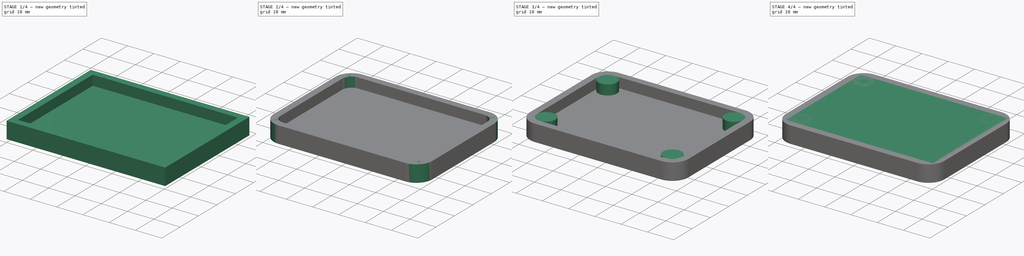
[diagram: build sequence overview — one tinted view per stage of 4, left to right]
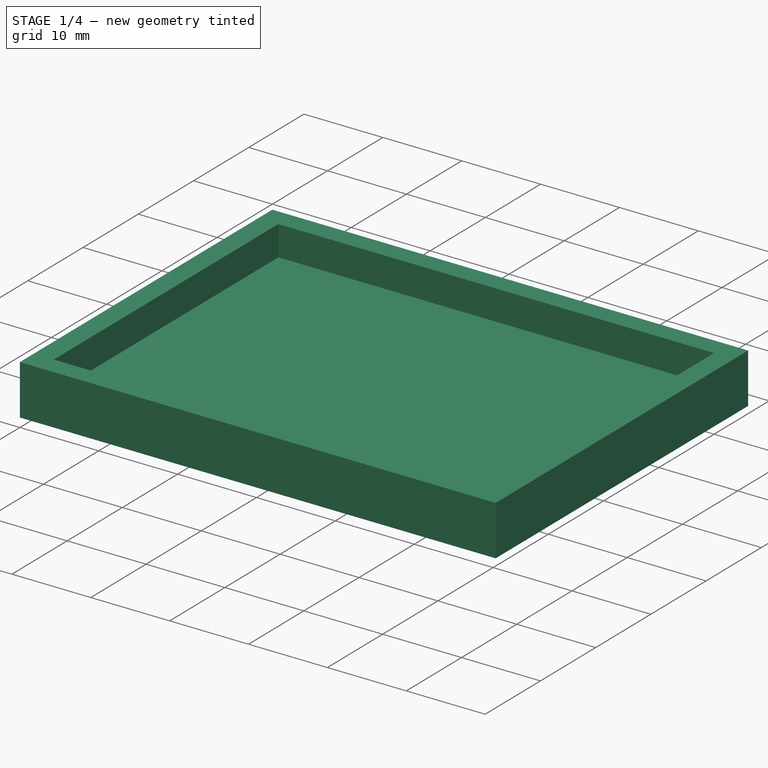
[diagram: stage 1 of 4 — iso view after this stage's code; geometry added in this stage tinted green]
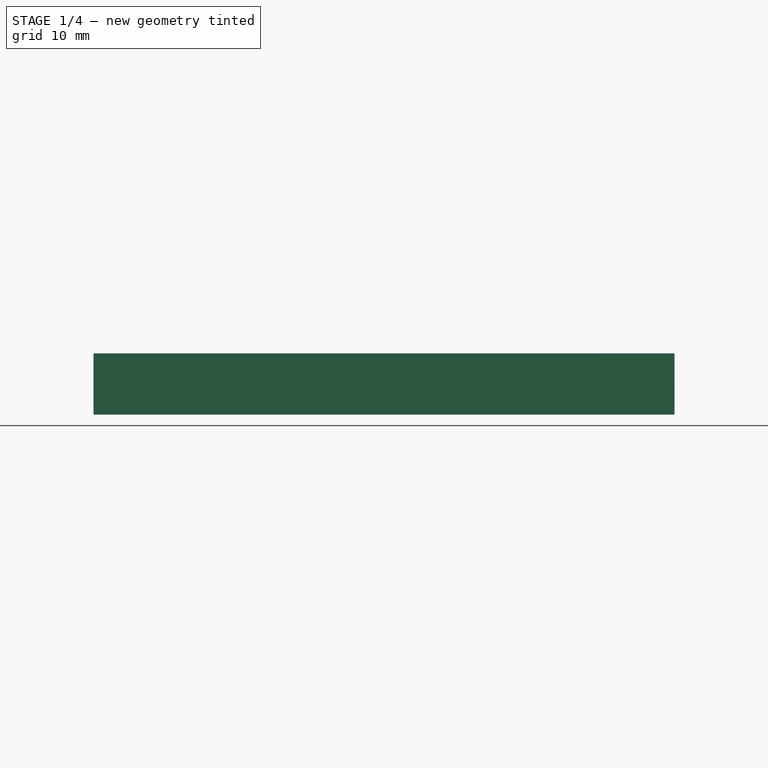
[diagram: stage 1 of 4 — front view after this stage's code; geometry added in this stage tinted green]
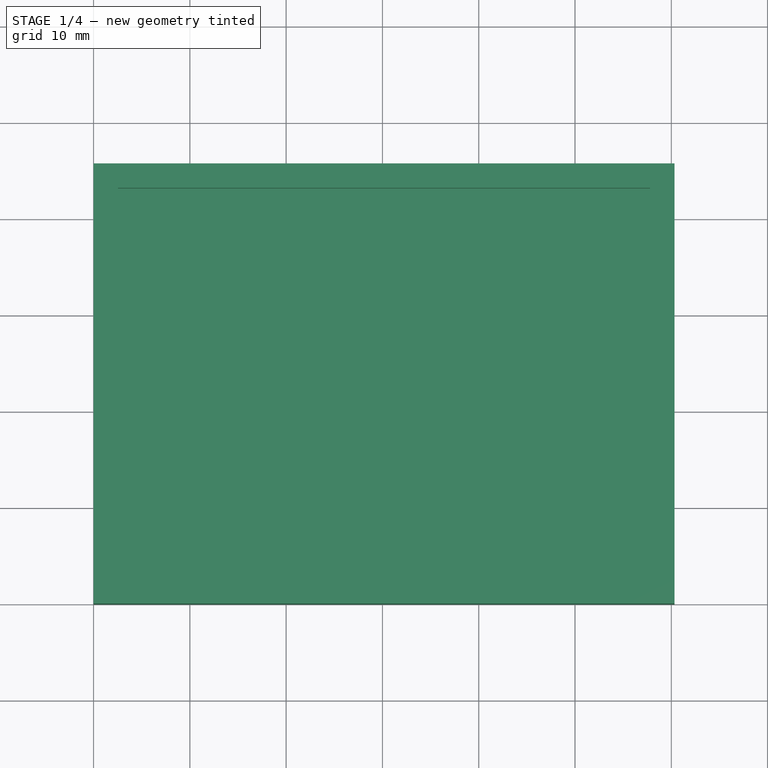
[diagram: stage 1 of 4 — top view after this stage's code; geometry added in this stage tinted green]
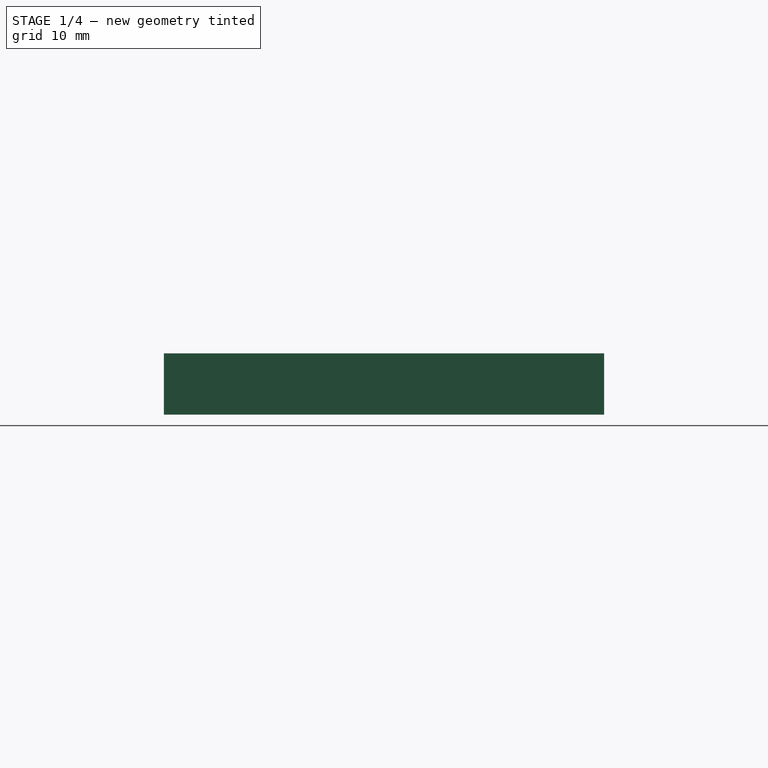
[diagram: stage 1 of 4 — right view after this stage's code; geometry added in this stage tinted green]
FCSTD DOCUMENT  (FreeCAD 0.19R21857 (Git))
Label: blinky_WB_part
License: All rights reserved
LicenseURL: http://en.wikipedia.org/wiki/All_rights_reserved
objects: Part::Feature×15, App::Part×15, Part::Box×2, Part::Fillet×2, Sketcher::SketchObject×2, Part::Extrusion×2, Part::Thickness×1, Part::MultiFuse×1, Part::Cut×1
note: 26 computed .brp shape members not serialized (recipe doc carries the construction recipe); baked Part::Feature solids carry a one-line shape summary decoded from their .brp

FEATURE [Part::Box] Box  label="Cube"
  AttacherType = Attacher::AttachEngine3D
  Height = 6.35
  Length = 60.325
  Width = 45.72
FEATURE [Part::Thickness] Thickness
  Faces = -> Box [Face6]
  Intersection = false
  Join = 2
  Mode = 0
  SelfIntersection = false
  Value = -2.54
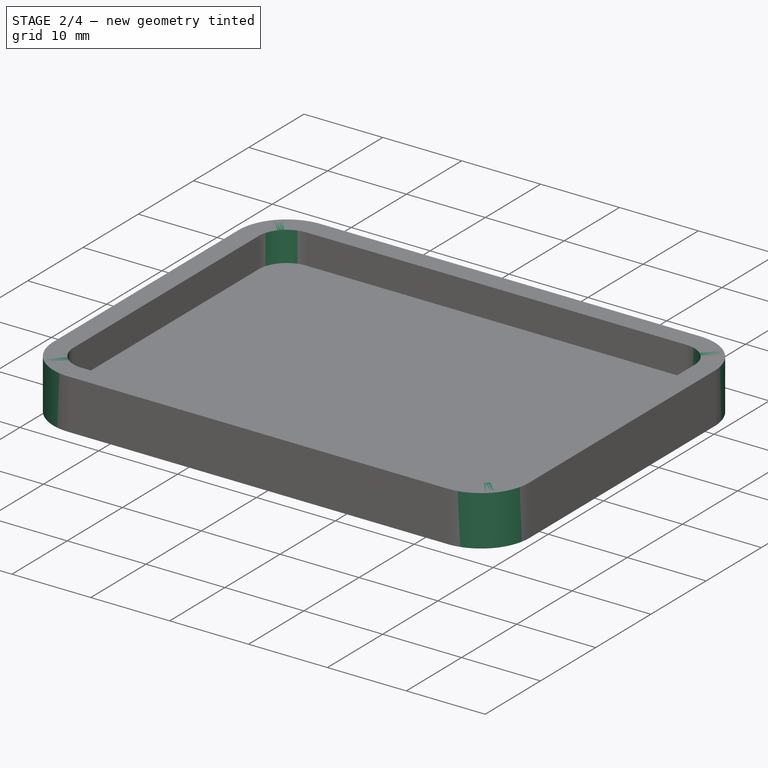
[diagram: stage 2 of 4 — iso view after this stage's code; geometry added in this stage tinted green]
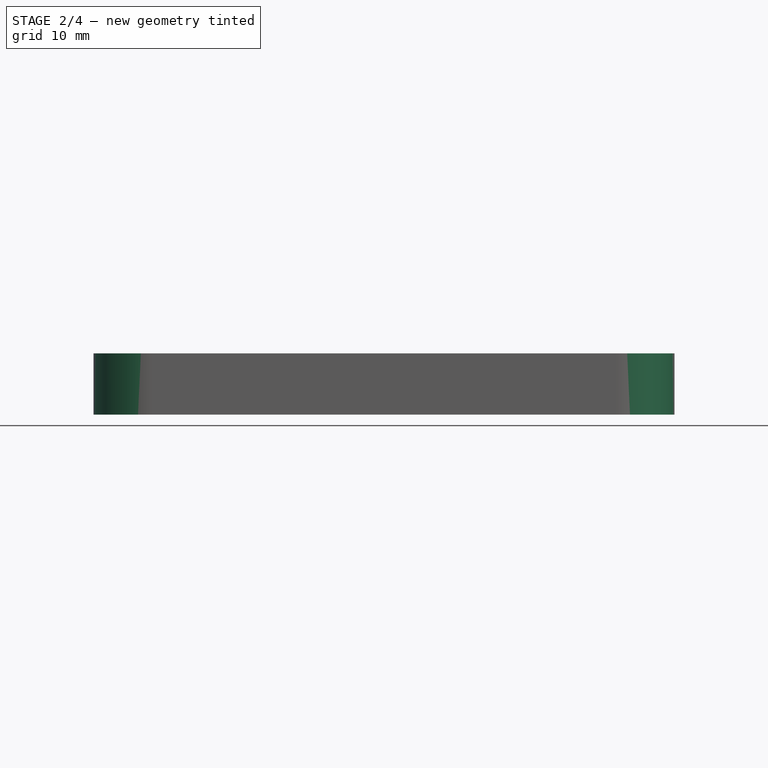
[diagram: stage 2 of 4 — front view after this stage's code; geometry added in this stage tinted green]
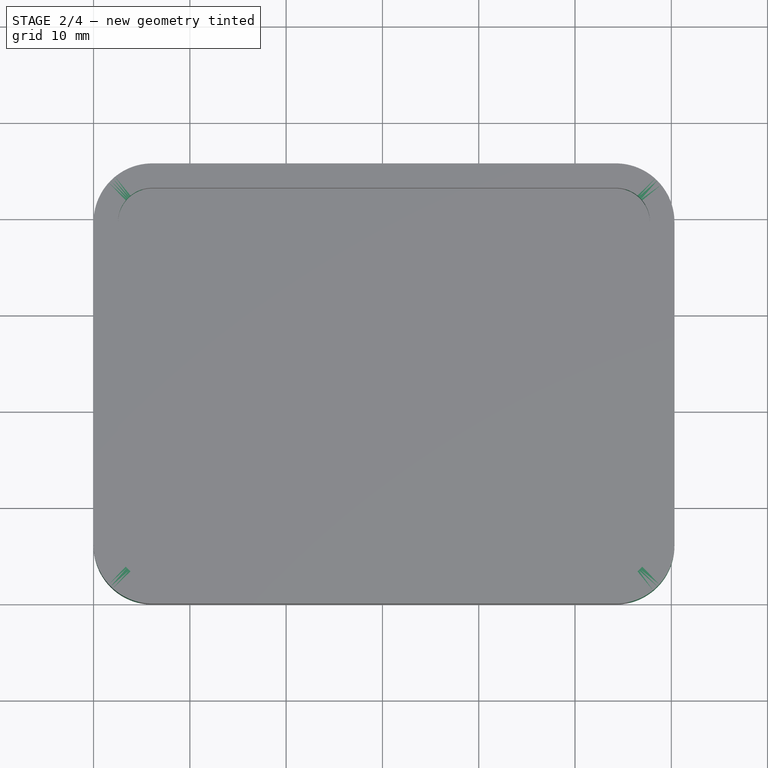
[diagram: stage 2 of 4 — top view after this stage's code; geometry added in this stage tinted green]
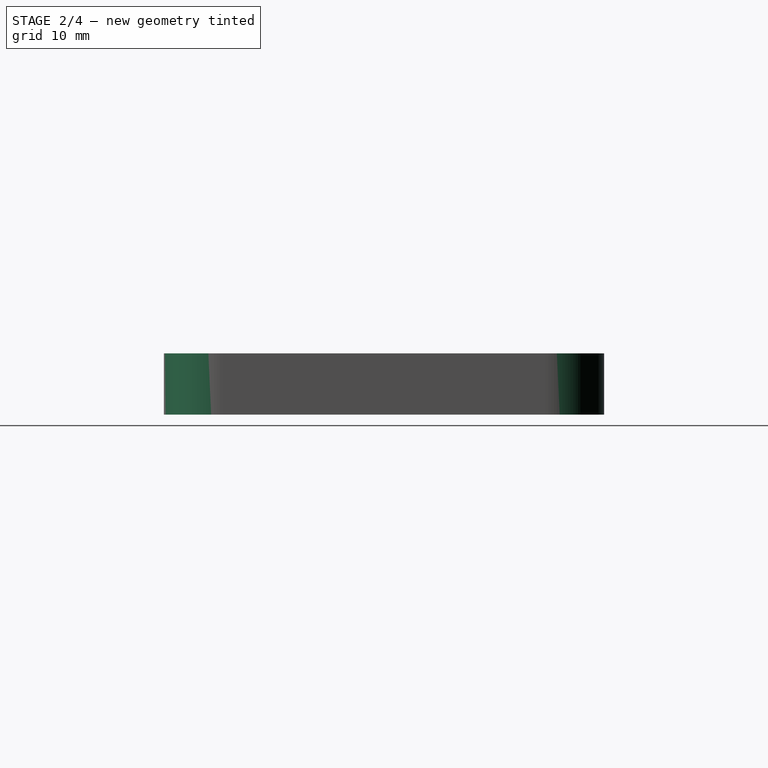
[diagram: stage 2 of 4 — right view after this stage's code; geometry added in this stage tinted green]
FEATURE [Part::Fillet] Fillet
  Base = -> Thickness
  Edges = 4 edges r=3.56: [Edge17,Edge19,Edge20,Edge22]
FEATURE [Part::Fillet] Fillet001
  Base = -> Fillet
  Edges = 4 edges r=6.1: [Edge29,Edge30,Edge33,Edge34]
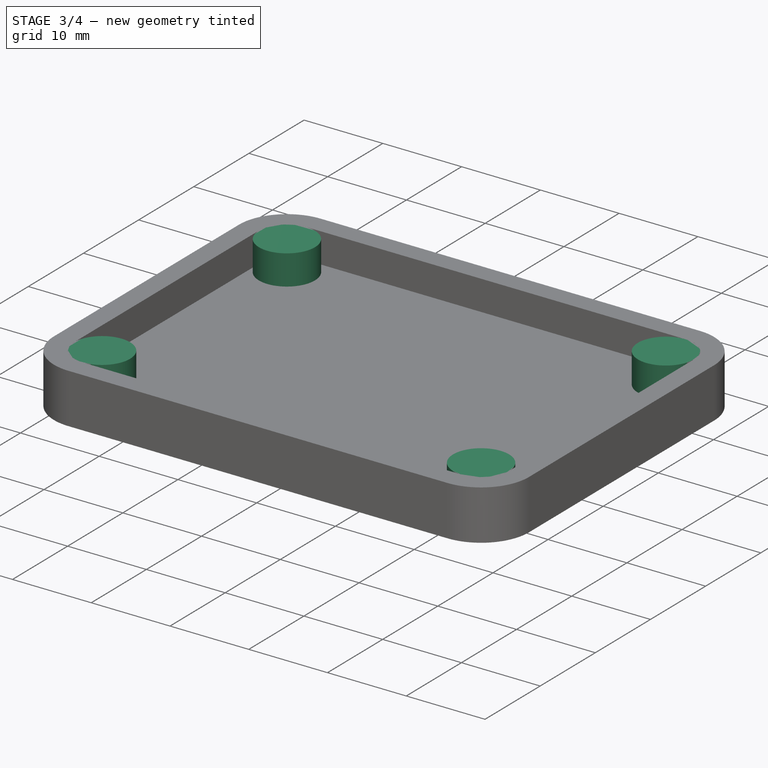
[diagram: stage 3 of 4 — iso view after this stage's code; geometry added in this stage tinted green]
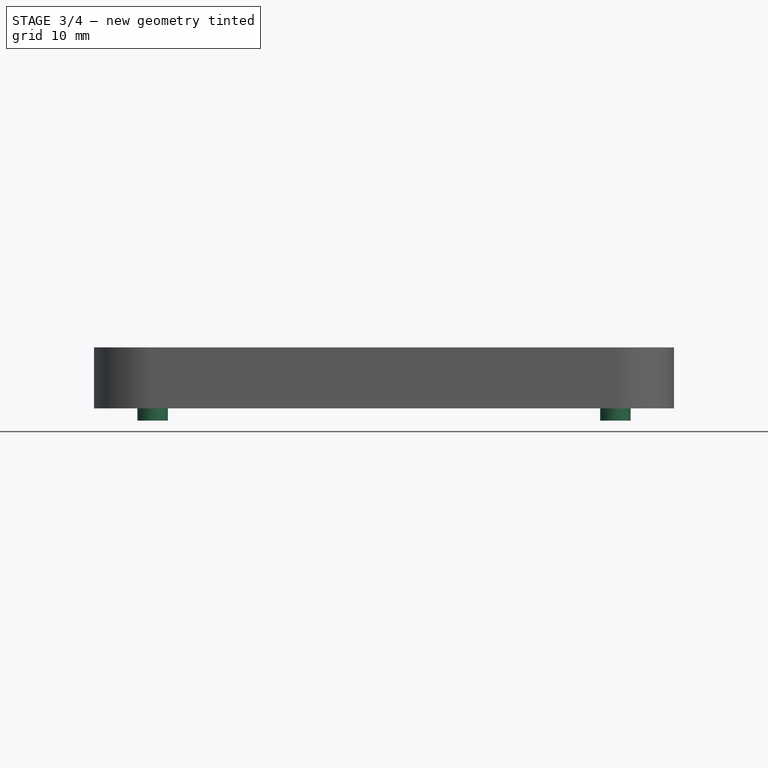
[diagram: stage 3 of 4 — front view after this stage's code; geometry added in this stage tinted green]
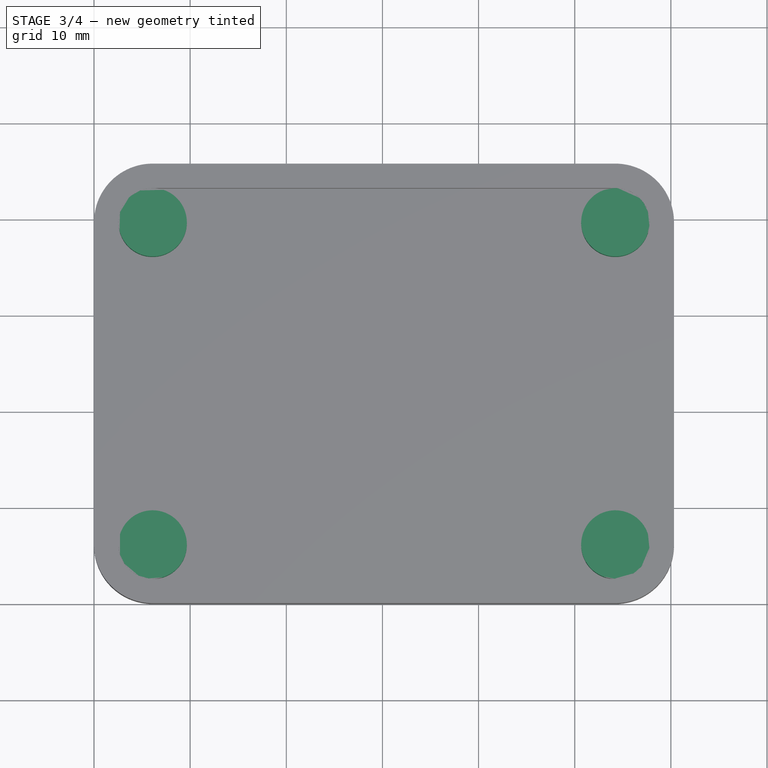
[diagram: stage 3 of 4 — top view after this stage's code; geometry added in this stage tinted green]
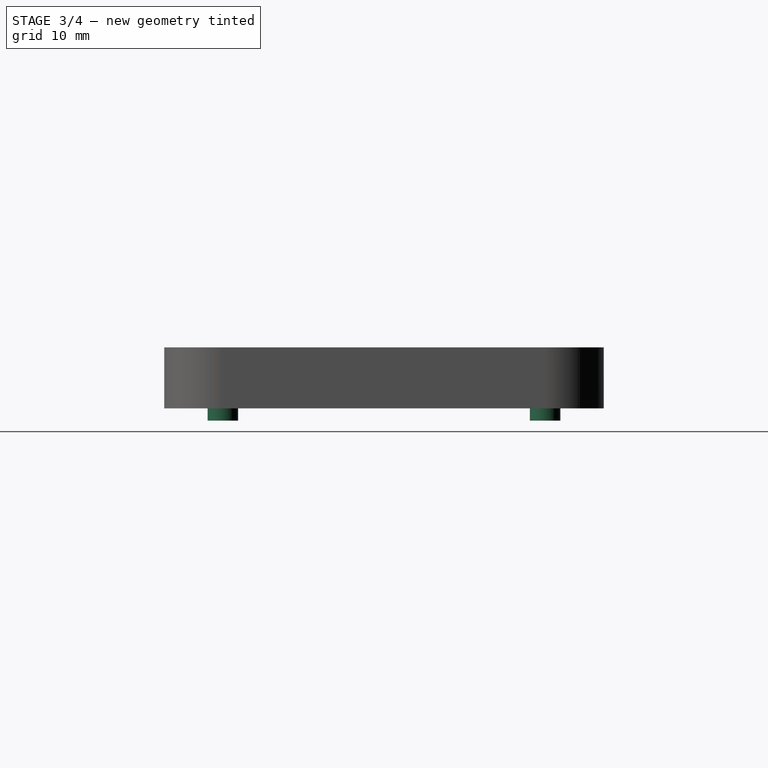
[diagram: stage 3 of 4 — right view after this stage's code; geometry added in this stage tinted green]
FEATURE [Sketcher::SketchObject] Sketch
  ExternalGeometry = -> [Fillet001]
  MapMode = 5
  Placement = pos=(0,0,2.54) rot=(0,0,1;0rad)
  Support = -> [Fillet001]
  sketch-geometry (4):
    g0: Circle CenterX=6.1 CenterY=39.62 CenterZ=0 NormalX=0 NormalY=0 NormalZ=1 AngleXU=0 Radius=3.556
    g1: Circle CenterX=54.225 CenterY=39.62 CenterZ=0 NormalX=0 NormalY=0 NormalZ=1 AngleXU=0 Radius=3.556
    g2: Circle CenterX=54.225 CenterY=6.1 CenterZ=0 NormalX=0 NormalY=0 NormalZ=1 AngleXU=0 Radius=3.556
    g3: Circle CenterX=6.1 CenterY=6.1 CenterZ=0 NormalX=0 NormalY=0 NormalZ=1 AngleXU=0 Radius=3.556
  constraints (8):
    c: Radius(g3) = 3.556
    c: Equal(g3,g0)
    c: Equal(g3,g1)
    c: Equal(g3,g2)
    c: Coincident(g1,g-6)
    c: Coincident(g0,g-3)
    c: Coincident(g3,g-4)
    c: Coincident(g2,g-5)
FEATURE [Part::Extrusion] Extrude
  Base = -> Sketch
  Dir = (0,0,3.81)
  DirLink = -> Fillet001 [Edge43]
  DirMode = 1
  FaceMakerClass = Part::FaceMakerBullseye
  LengthFwd = 0
  LengthRev = 0
  Solid = true
  Symmetric = false
FEATURE [Sketcher::SketchObject] Sketch001
  ExternalGeometry = -> [Extrude]
  MapMode = 5
  Placement = pos=(0,0,6.35) rot=(0,0,1;0rad)
  Support = -> [Extrude]
  sketch-geometry (4):
    g0: Circle CenterX=6.1 CenterY=39.62 CenterZ=0 NormalX=0 NormalY=0 NormalZ=1 AngleXU=0 Radius=1.5875
    g1: Circle CenterX=54.225 CenterY=39.62 CenterZ=0 NormalX=0 NormalY=0 NormalZ=1 AngleXU=0 Radius=1.5875
    g2: Circle CenterX=54.225 CenterY=6.1 CenterZ=0 NormalX=0 NormalY=0 NormalZ=1 AngleXU=0 Radius=1.5875
    g3: Circle CenterX=6.1 CenterY=6.1 CenterZ=0 NormalX=0 NormalY=0 NormalZ=1 AngleXU=0 Radius=1.5875
  constraints (8):
    c: Coincident(g3,g-6)
    c: Coincident(g0,g-3)
    c: Coincident(g1,g-4)
    c: Coincident(g2,g-5)
    c: Radius(g0) = 1.5875
    c: Equal(g0,g3)
    c: Equal(g0,g2)
    c: Equal(g0,g1)
FEATURE [Part::Extrusion] Extrude001
  Base = -> Sketch001
  Dir = (0,0,1)
  DirMode = 2
  FaceMakerClass = Part::FaceMakerBullseye
  LengthFwd = 0
  LengthRev = 7.62
  Solid = true
  Symmetric = false
FEATURE [Part::MultiFuse] Fusion
  Shapes = -> [Fillet001,Extrude]
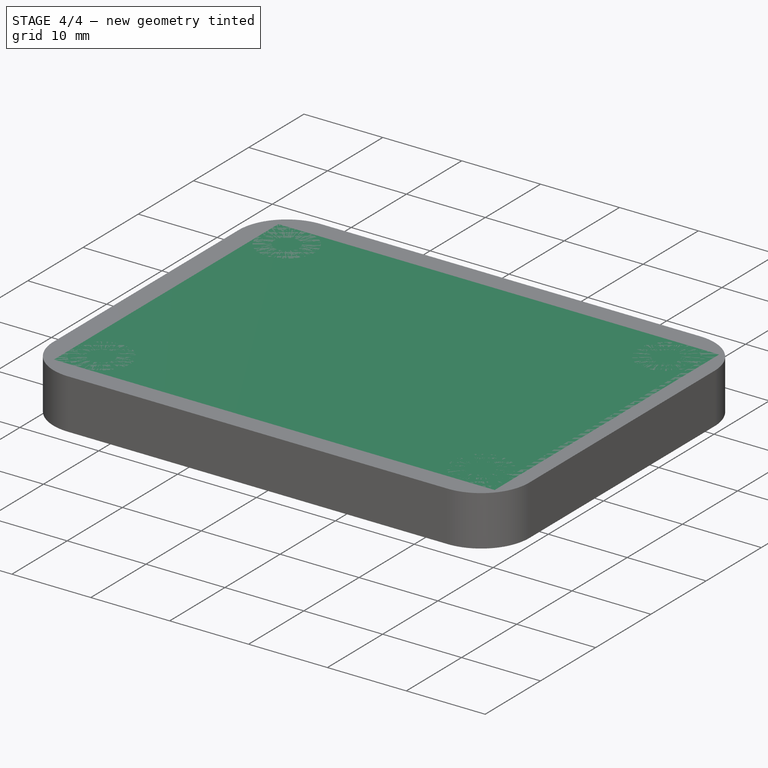
[diagram: stage 4 of 4 — iso view after this stage's code; geometry added in this stage tinted green]
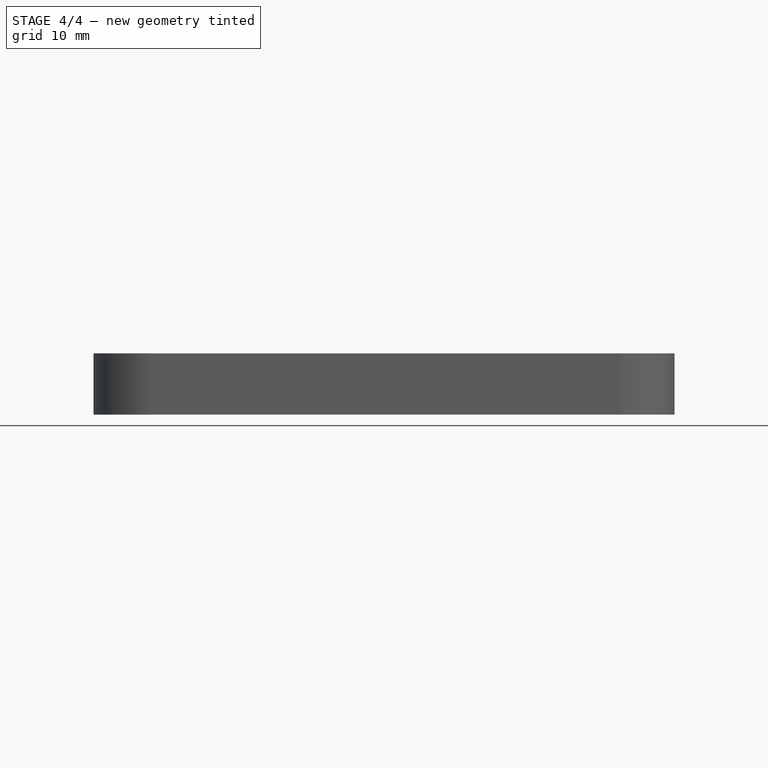
[diagram: stage 4 of 4 — front view after this stage's code; geometry added in this stage tinted green]
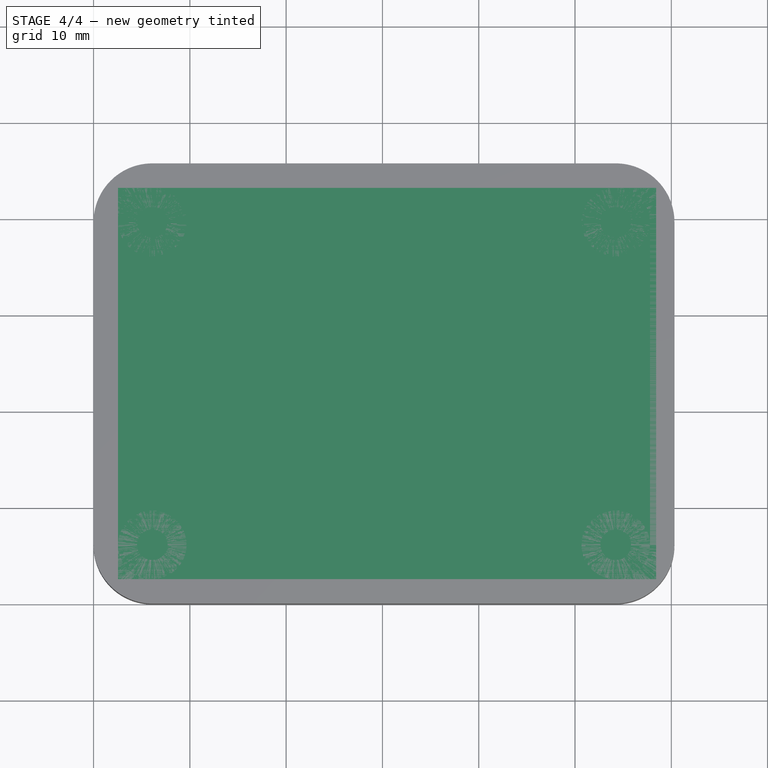
[diagram: stage 4 of 4 — top view after this stage's code; geometry added in this stage tinted green]
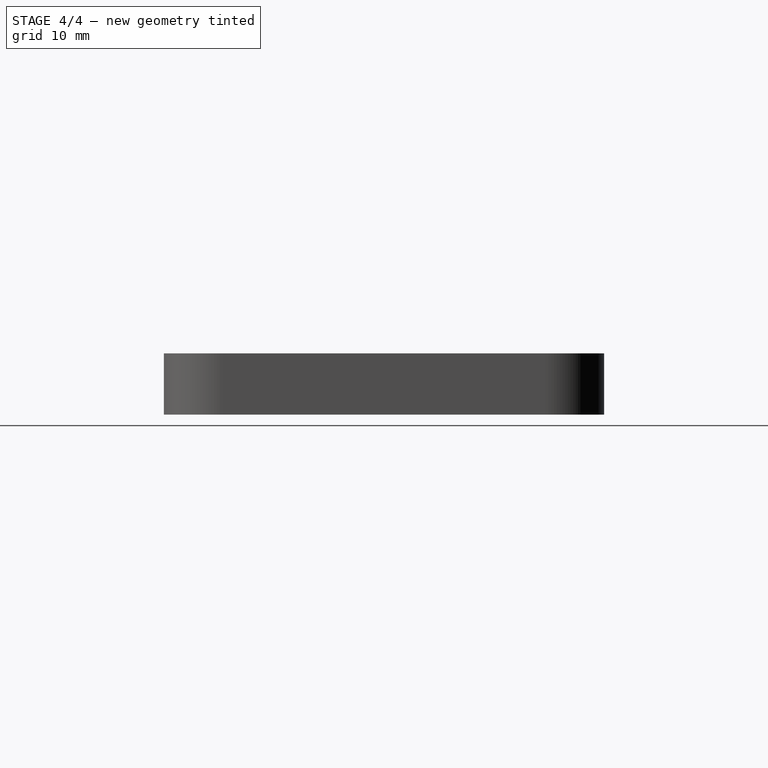
[diagram: stage 4 of 4 — right view after this stage's code; geometry added in this stage tinted green]
FEATURE [Part::Box] Box001  label="Cube001"
  AttacherType = Attacher::AttachEngine3D
  Height = 3.81
  Length = 55.88
  Placement = pos=(2.54,2.54,2.54) rot=(0,0,1;0rad)
  Width = 40.64
FEATURE [Part::Cut] Cut
  Base = -> Fusion
  Tool = -> Extrude001
FEATURE [Part::Feature] Part__Feature  label="SOLID"
  shape: bbox 9.886 x 10.23 x 10 mm, 54 faces (baked)
FEATURE [App::Part] CP_Radial_D8_0mm_P3_50mm  label="CP_Radial_D8.0mm_P3.50mm"
  Group = -> [Part__Feature]
  Origin = -> Origin
  Placement = pos=(-4.064,-11.684,1.65) rot=(0,0,1;1.5708rad)
FEATURE [Part::Feature] Part__Feature001  label="SOLID001"
  shape: bbox 5 x 2.5 x 7.1 mm, 6 faces (baked)
FEATURE [App::Part] C_Disc_D5_0mm_W2_5mm_P2_50mm  label="C_Disc_D5.0mm_W2.5mm_P2.50mm"
  Group = -> [Part__Feature001]
  Origin = -> Origin001
  Placement = pos=(11.684,-6.096,1.65) rot=(0,0,1;1.5708rad)
FEATURE [Part::Feature] Part__Feature002  label="SOLID002"
  shape: bbox 5.4 x 5 x 1.6 mm, 68 faces (baked)
FEATURE [App::Part] LED_WS2812B_PLCC4_5_0x5_0mm_P3_2mm  label="LED_WS2812B_PLCC4_5.0x5.0mm_P3.2mm"
  Group = -> [Part__Feature002]
  Origin = -> Origin002
  Placement = pos=(25.4,8.128,1.65) rot=(0,0,1;0rad)
FEATURE [Part::Feature] Part__Feature003  label="SOLID003"
  shape: bbox 5.4 x 5 x 1.6 mm, 68 faces (baked)
FEATURE [App::Part] LED_WS2812B_PLCC4_5_0x5_0mm_P3_2mm001  label="LED_WS2812B_PLCC4_5.0x5.0mm_P3.2mm001"
  Group = -> [Part__Feature003]
  Origin = -> Origin003
  Placement = pos=(25.4,0,1.65) rot=(0,0,1;0rad)
FEATURE [Part::Feature] Part__Feature004  label="SOLID004"
  shape: bbox 5.4 x 5 x 1.6 mm, 68 faces (baked)
FEATURE [App::Part] LED_WS2812B_PLCC4_5_0x5_0mm_P3_2mm002  label="LED_WS2812B_PLCC4_5.0x5.0mm_P3.2mm002"
  Group = -> [Part__Feature004]
  Origin = -> Origin004
  Placement = pos=(25.4,-8.128,1.65) rot=(0,0,1;0rad)
FEATURE [Part::Feature] Part__Feature005  label="SOLID005"
  shape: bbox 2.54 x 7.62 x 10.1 mm, 103 faces (baked)
FEATURE [App::Part] PinSocket_1x03_P2_54mm_Vertical  label="PinSocket_1x03_P2.54mm_Vertical"
  Group = -> [Part__Feature005]
  Origin = -> Origin005
  Placement = pos=(33.02,2.54,1.65) rot=(0,0,1;0rad)
FEATURE [Part::Feature] Part__Feature006  label="SOLID006"
  shape: bbox 5.08 x 7.62 x 11.54 mm, 130 faces (baked)
FEATURE [App::Part] PinHeader_2x03_P2_54mm_Vertical  label="PinHeader_2x03_P2.54mm_Vertical"
  Group = -> [Part__Feature006]
  Origin = -> Origin006
  Placement = pos=(-2.032,11.684,1.65) rot=(0,0,1;1.5708rad)
FEATURE [Part::Feature] Part__Feature007  label="SOLID007"
  shape: bbox 2.54 x 5.08 x 10.1 mm, 72 faces (baked)
FEATURE [App::Part] PinSocket_1x02_P2_54mm_Vertical  label="PinSocket_1x02_P2.54mm_Vertical"
  Group = -> [Part__Feature007]
  Origin = -> Origin007
  Placement = pos=(-11.176,-12.7,1.65) rot=(0,0,1;3.14159rad)
FEATURE [Part::Feature] Part__Feature008  label="SOLID008"
  shape: bbox 2.54 x 5.08 x 10.1 mm, 72 faces (baked)
FEATURE [App::Part] PinSocket_1x02_P2_54mm_Vertical001  label="PinSocket_1x02_P2.54mm_Vertical001"
  Group = -> [Part__Feature008]
  Origin = -> Origin008
  Placement = pos=(11.684,-12.7,1.65) rot=(0,0,1;3.14159rad)
FEATURE [Part::Feature] Part__Feature009  label="SOLID009"
  shape: bbox 8.418 x 2.706 x 5.603 mm, 15 faces (baked)
FEATURE [App::Part] R_Axial_DIN0207_L6_3mm_D2_5mm_P7_62mm_Horizontal  label="R_Axial_DIN0207_L6.3mm_D2.5mm_P7.62mm_Horizontal"
  Group = -> [Part__Feature009]
  Origin = -> Origin009
  Placement = pos=(8.128,6.096,1.65) rot=(0,0,-1;1.5708rad)
FEATURE [Part::Feature] Part__Feature010  label="SOLID010"
  shape: bbox 8.418 x 2.706 x 5.603 mm, 15 faces (baked)
FEATURE [App::Part] R_Axial_DIN0207_L6_3mm_D2_5mm_P7_62mm_Horizontal001  label="R_Axial_DIN0207_L6.3mm_D2.5mm_P7.62mm_Horizontal001"
  Group = -> [Part__Feature010]
  Origin = -> Origin010
  Placement = pos=(-8.636,6.096,1.65) rot=(0,0,-1;1.5708rad)
FEATURE [Part::Feature] Part__Feature011  label="SOLID011"
  shape: bbox 7.174 x 6 x 8.5 mm, 105 faces (baked)
FEATURE [App::Part] SW_PUSH_6mm_H5mm
  Group = -> [Part__Feature011]
  Origin = -> Origin011
  Placement = pos=(-12.7,14.224,1.65) rot=(0,0,1;0rad)
FEATURE [Part::Feature] Part__Feature012  label="SOLID012"
  shape: bbox 7.874 x 9.27 x 6.98 mm, 148 faces (baked)
FEATURE [App::Part] DIP_8_W7_62mm  label="DIP-8_W7.62mm"
  Group = -> [Part__Feature012]
  Origin = -> Origin012
  Placement = pos=(-4.064,-1.524,1.65) rot=(0,0,1;1.5708rad)
FEATURE [Part::Feature] Part__Feature013  label="SOLID013"
  shape: bbox 7 x 6.5 x 1.7 mm, 78 faces (baked)
FEATURE [App::Part] SOT_223  label="SOT-223"
  Group = -> [Part__Feature013]
  Origin = -> Origin013
  Placement = pos=(5.08,-10.668,1.65) rot=(0,0,-1;1.5708rad)
FEATURE [Part::Feature] Part__Feature014  label="COMPOUND"
  shape: bbox 71.12 x 40.64 x 1.6 mm, 83 faces (baked)
FEATURE [App::Part] Open_CASCADE_STEP_translator_6_9_1  label="Open CASCADE STEP translator 6.9 1"
  Group = -> [CP_Radial_D8_0mm_P3_50mm,C_Disc_D5_0mm_W2_5mm_P2_50mm,LED_WS2812B_PLCC4_5_0x5_0mm_P3_2mm,LED_WS2812B_PLCC4_5_0x5_0mm_P3_2mm001,LED_WS2812B_PLCC4_5_0x5_0mm_P3_2mm002,PinSocket_1x03_P2_54mm_Vertical,PinHeader_2x03_P2_54mm_Vertical,PinSocket_1x02_P2_54mm_Vertical,PinSocket_1x02_P2_54mm_Vertical001,R_Axial_DIN0207_L6_3mm_D2_5mm_P7_62mm_Horizontal,R_Axial_DIN0207_L6_3mm_D2_5mm_P7_62mm_Horizontal001,+4 more]
  Origin = -> Origin014
  Placement = pos=(38.104,22.856,6.35) rot=(0,0,1;0rad)
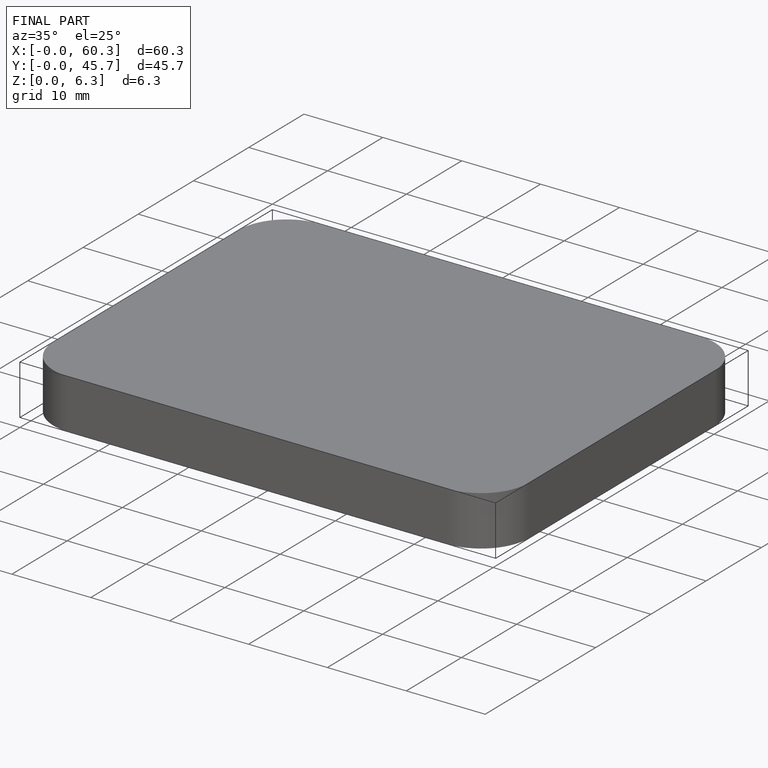
[diagram: finished part — iso view with bounding-box wireframe]
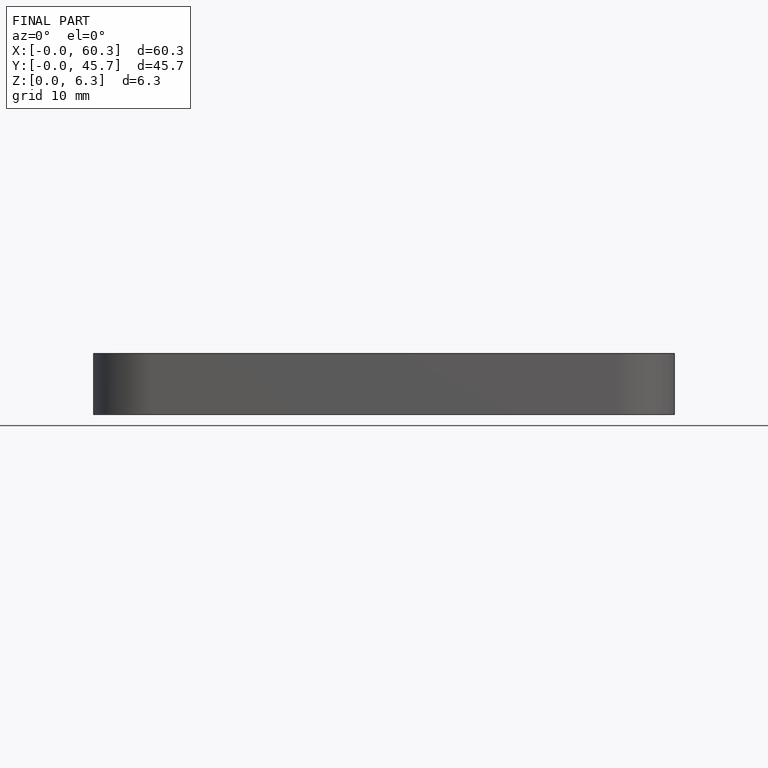
[diagram: finished part — front view with bounding-box wireframe]
